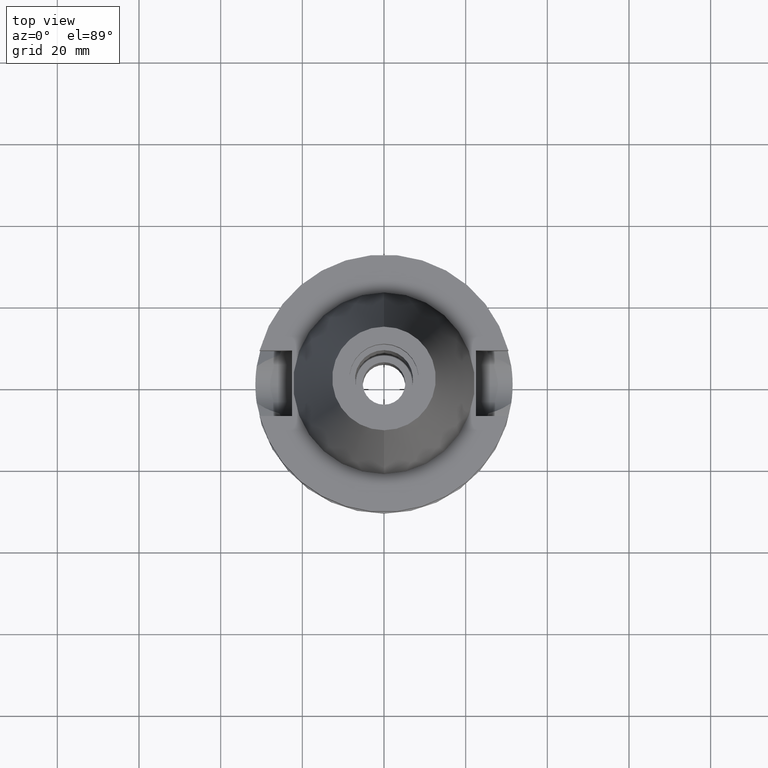
[diagram: clean part render]
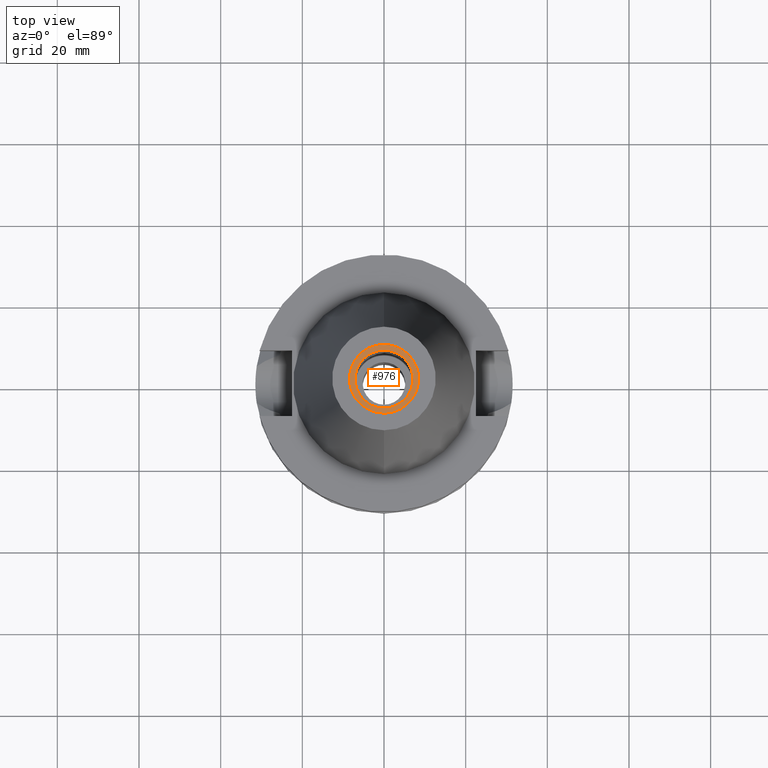
[diagram: same view with one face highlighted and labeled with its STEP entity id]
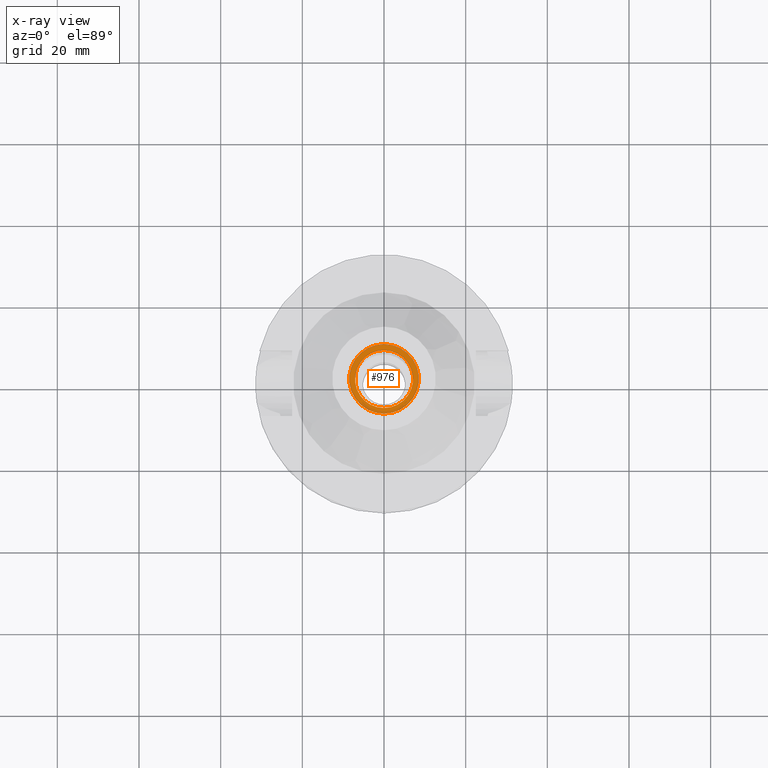
[diagram: x-ray of the same camera — body ghosted, the highlighted face saturated]
A machine part, top view. The second image highlights one B-rep face of the part: STEP entity #976.
The next image is the same camera in x-ray: the body ghosted, the highlighted face saturated — about 0% of this face is hidden behind the body in this view.
In plain terms, the highlighted planar face has unit normal (0, 0, -1).
Its self-contained STEP definition (entity closure, byte-faithful):
#96 = VERTEX_POINT ( 'NONE', #2249 ) ;
#107 = DIRECTION ( 'NONE',  ( 0.0000000000000000000, 0.0000000000000000000, -1.000000000000000000 ) ) ;
#130 = DIRECTION ( 'NONE',  ( 0.0000000000000000000, 0.0000000000000000000, 1.000000000000000000 ) ) ;
#178 = VERTEX_POINT ( 'NONE', #2830 ) ;
#325 = CARTESIAN_POINT ( 'NONE',  ( 0.0000000000000000000, -8.500000000000000000, 56.39999999999999858 ) ) ;
#328 = AXIS2_PLACEMENT_3D ( 'NONE', #2040, #1800, #3020 ) ;
#401 = EDGE_LOOP ( 'NONE', ( #1891, #509 ) ) ;
#450 = DIRECTION ( 'NONE',  ( 0.0000000000000000000, -1.000000000000000000, 0.0000000000000000000 ) ) ;
#473 = EDGE_LOOP ( 'NONE', ( #2389, #1396 ) ) ;
#509 = ORIENTED_EDGE ( 'NONE', *, *, #1725, .F. ) ;
#546 = CIRCLE ( 'NONE', #599, 7.100000000000000533 ) ;
#599 = AXIS2_PLACEMENT_3D ( 'NONE', #992, #2512, #2712 ) ;
#712 = CARTESIAN_POINT ( 'NONE',  ( 0.0000000000000000000, 1.915347593865999799E-14, 56.39999999999999858 ) ) ;
#919 = PLANE ( 'NONE',  #1562 ) ;
#976 = ADVANCED_FACE ( 'NONE', ( #1176, #1673 ), #919, .F. ) ;
#992 = CARTESIAN_POINT ( 'NONE',  ( 0.0000000000000000000, 2.116618295306000150E-14, 56.39999999999999858 ) ) ;
#1066 = DIRECTION ( 'NONE',  ( 0.0000000000000000000, -1.000000000000000000, 0.0000000000000000000 ) ) ;
#1120 = CARTESIAN_POINT ( 'NONE',  ( 0.0000000000000000000, 2.116618295306000150E-14, 56.39999999999999858 ) ) ;
#1155 = AXIS2_PLACEMENT_3D ( 'NONE', #1120, #130, #2061 ) ;
#1176 = FACE_OUTER_BOUND ( 'NONE', #473, .T. ) ;
#1288 = EDGE_CURVE ( 'NONE', #2161, #96, #2795, .T. ) ;
#1396 = ORIENTED_EDGE ( 'NONE', *, *, #1288, .F. ) ;
#1562 = AXIS2_PLACEMENT_3D ( 'NONE', #712, #2145, #450 ) ;
#1673 = FACE_BOUND ( 'NONE', #401, .T. ) ;
#1725 = EDGE_CURVE ( 'NONE', #2210, #178, #2535, .T. ) ;
#1800 = DIRECTION ( 'NONE',  ( 0.0000000000000000000, 0.0000000000000000000, -1.000000000000000000 ) ) ;
#1891 = ORIENTED_EDGE ( 'NONE', *, *, #3116, .F. ) ;
#2040 = CARTESIAN_POINT ( 'NONE',  ( 0.0000000000000000000, 2.116618295306000150E-14, 56.39999999999999858 ) ) ;
#2061 = DIRECTION ( 'NONE',  ( 0.0000000000000000000, -1.000000000000000000, 0.0000000000000000000 ) ) ;
#2076 = AXIS2_PLACEMENT_3D ( 'NONE', #2776, #107, #1066 ) ;
#2145 = DIRECTION ( 'NONE',  ( 0.0000000000000000000, 0.0000000000000000000, -1.000000000000000000 ) ) ;
#2161 = VERTEX_POINT ( 'NONE', #325 ) ;
#2200 = EDGE_CURVE ( 'NONE', #96, #2161, #2734, .T. ) ;
#2210 = VERTEX_POINT ( 'NONE', #2490 ) ;
#2249 = CARTESIAN_POINT ( 'NONE',  ( 0.0000000000000000000, 8.500000000000000000, 56.39999999999999858 ) ) ;
#2389 = ORIENTED_EDGE ( 'NONE', *, *, #2200, .F. ) ;
#2490 = CARTESIAN_POINT ( 'NONE',  ( 0.0000000000000000000, -7.100000000000000533, 56.39999999999999858 ) ) ;
#2512 = DIRECTION ( 'NONE',  ( 0.0000000000000000000, 0.0000000000000000000, 1.000000000000000000 ) ) ;
#2535 = CIRCLE ( 'NONE', #1155, 7.100000000000000533 ) ;
#2712 = DIRECTION ( 'NONE',  ( 0.0000000000000000000, 1.000000000000000000, 0.0000000000000000000 ) ) ;
#2734 = CIRCLE ( 'NONE', #328, 8.500000000000000000 ) ;
#2776 = CARTESIAN_POINT ( 'NONE',  ( 0.0000000000000000000, 2.116618295306000150E-14, 56.39999999999999858 ) ) ;
#2795 = CIRCLE ( 'NONE', #2076, 8.500000000000000000 ) ;
#2830 = CARTESIAN_POINT ( 'NONE',  ( 0.0000000000000000000, 7.100000000000000533, 56.39999999999999858 ) ) ;
#3020 = DIRECTION ( 'NONE',  ( 0.0000000000000000000, 1.000000000000000000, 0.0000000000000000000 ) ) ;
#3116 = EDGE_CURVE ( 'NONE', #178, #2210, #546, .T. ) ;